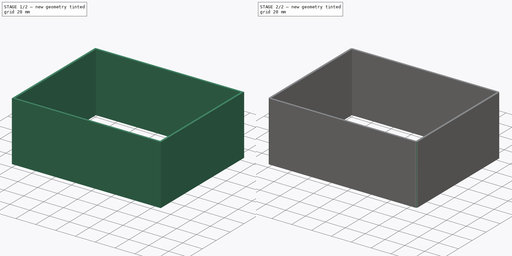
[diagram: build sequence overview — one tinted view per stage of 2, left to right]
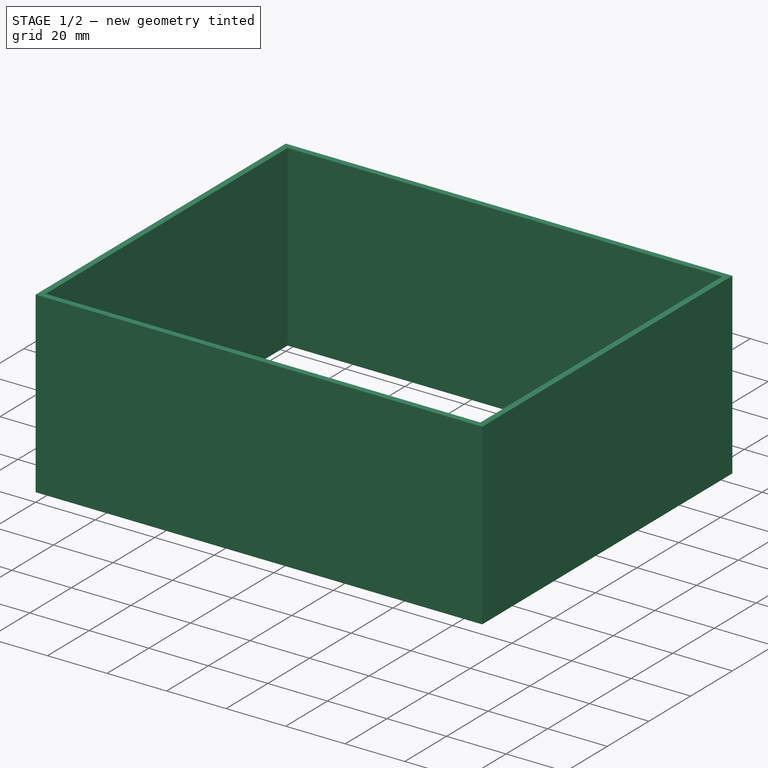
[diagram: stage 1 of 2 — iso view after this stage's code; geometry added in this stage tinted green]
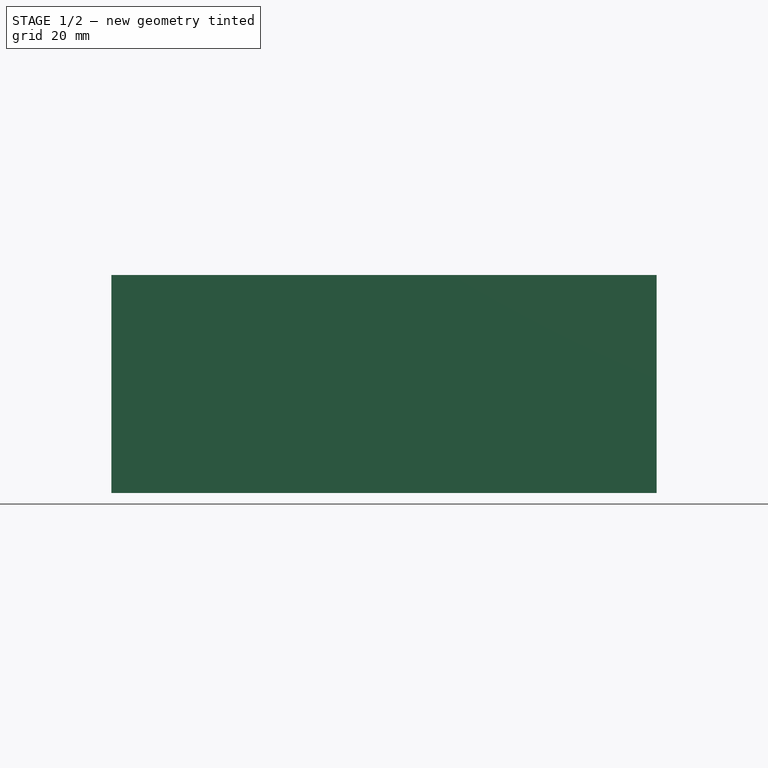
[diagram: stage 1 of 2 — front view after this stage's code; geometry added in this stage tinted green]
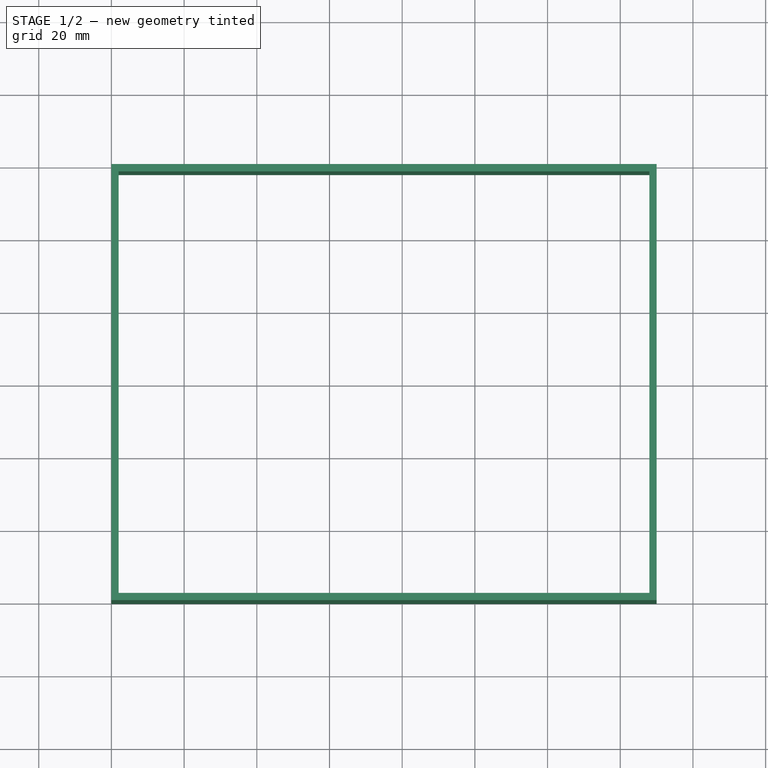
[diagram: stage 1 of 2 — top view after this stage's code; geometry added in this stage tinted green]
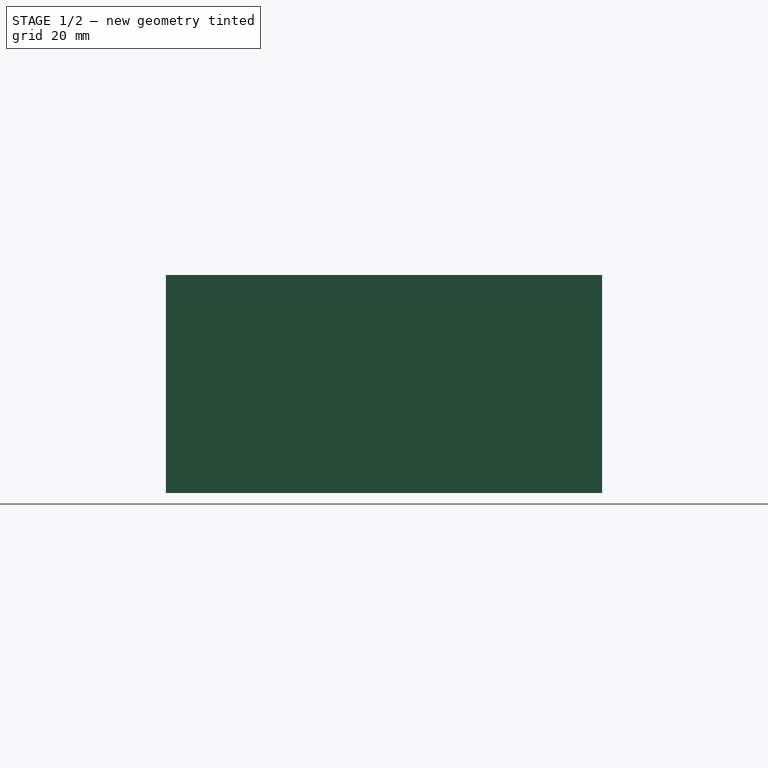
[diagram: stage 1 of 2 — right view after this stage's code; geometry added in this stage tinted green]
FCSTD DOCUMENT  (FreeCAD 1.0R38806 (Git))
Label: Walls
License: All rights reserved
LicenseURL: https://en.wikipedia.org/wiki/All_rights_reserved
objects: Sketcher::SketchObject×5, PartDesign::Plane×2, PartDesign::Pocket×2, PartDesign::Pad×1, PartDesign::Fillet×1, PartDesign::Body×1
note: 25 computed .brp shape members not serialized (recipe doc carries the construction recipe); baked Part::Feature solids carry a one-line shape summary decoded from their .brp

FEATURE [Sketcher::SketchObject] Sketch  label="Base"
  ArcFitTolerance = 0
  FullyConstrained = true
  MakeInternals = false
  MapMode = 5
  sketch-geometry (4):
    g0: LineSegment StartX=0 StartY=0 StartZ=0 EndX=150 EndY=0 EndZ=0
    g1: LineSegment StartX=150 StartY=0 StartZ=0 EndX=150 EndY=120 EndZ=0
    g2: LineSegment StartX=150 StartY=120 StartZ=0 EndX=0 EndY=120 EndZ=0
    g3: LineSegment StartX=0 StartY=120 StartZ=0 EndX=0 EndY=0 EndZ=0
  constraints (11):
    c: Coincident(g0,g1)
    c: Coincident(g1,g2)
    c: Coincident(g2,g3)
    c: Coincident(g3,g0)
    c: Horizontal(g0)
    c: Horizontal(g2)
    c: Vertical(g1)
    c: Vertical(g3)
    c: Coincident(g0,g-1)
    c: DistanceY(g3,g3) = 120  'height'
    c: DistanceX(g2,g2) = 150  'width'
FEATURE [Sketcher::SketchObject] Sketch001  label="Left"
  ArcFitTolerance = 0
  ExternalGeometry = -> [Sketch]
  FullyConstrained = true
  MakeInternals = false
  MapMode = 5
  Placement = pos=(0,0,0) rot=(0.57735,0.57735,0.57735;2.0944rad)
  sketch-geometry (4):
    g0: LineSegment StartX=0 StartY=0 StartZ=0 EndX=120 EndY=0 EndZ=0
    g1: LineSegment StartX=120 StartY=0 StartZ=0 EndX=120 EndY=60 EndZ=0
    g2: LineSegment StartX=120 StartY=60 StartZ=0 EndX=0 EndY=60 EndZ=0
    g3: LineSegment StartX=0 StartY=60 StartZ=0 EndX=0 EndY=0 EndZ=0
  constraints (10):
    c: Coincident(g0,g1)
    c: Coincident(g1,g2)
    c: Coincident(g2,g3)
    c: Coincident(g3,g0)
    c: Horizontal(g2)
    c: Vertical(g1)
    c: Vertical(g3)
    c: Coincident(g0,g-1)
    c: Coincident(g0,g-3)
    c: DistanceY(g3,g3) = 60  'gameboy_depth'
FEATURE [Sketcher::SketchObject] Sketch002  label="Front"
  ArcFitTolerance = 0
  ExternalGeometry = -> [Sketch001,Sketch]
  FullyConstrained = true
  MakeInternals = false
  MapMode = 5
  Placement = pos=(0,0,0) rot=(1,0,0;1.5708rad)
  sketch-geometry (4):
    g0: LineSegment StartX=0 StartY=60 StartZ=0 EndX=0 EndY=0 EndZ=0
    g1: LineSegment StartX=0 StartY=0 StartZ=0 EndX=150 EndY=0 EndZ=0
    g2: LineSegment StartX=150 StartY=0 StartZ=0 EndX=150 EndY=60 EndZ=0
    g3: LineSegment StartX=150 StartY=60 StartZ=0 EndX=0 EndY=60 EndZ=0
  constraints (10):
    c: Coincident(g0,g1)
    c: Coincident(g1,g2)
    c: Coincident(g2,g3)
    c: Coincident(g3,g0)
    c: Vertical(g0)
    c: Vertical(g2)
    c: Horizontal(g1)
    c: Horizontal(g3)
    c: Coincident(g0,g-3)
    c: Coincident(g1,g-4)
FEATURE [PartDesign::Plane] DatumPlane
  AttachmentOffset = pos=(0,0,-120) rot=(0,0,1;0rad)
  Length = 199.393
  MapMode = 5
  Placement = pos=(0,120,-2.4e-14) rot=(1,0,0;1.5708rad)
  ResizeMode = 0
  Width = 109.393
  expr: .AttachmentOffset.Base.z = -1 * <<Base>>.Constraints.height
FEATURE [PartDesign::Plane] DatumPlane001
  AttachmentOffset = pos=(0,0,150) rot=(0,0,1;0rad)
  Length = 167.204
  MapMode = 5
  Placement = pos=(125,0,0) rot=(0.57735,0.57735,0.57735;2.0944rad)
  ResizeMode = 0
  Width = 107.204
  expr: .AttachmentOffset.Base.z = <<Base>>.Constraints.width
FEATURE [Sketcher::SketchObject] Sketch003  label="Cutout"
  ArcFitTolerance = 0
  ExternalGeometry = -> [Sketch]
  FullyConstrained = true
  MakeInternals = false
  MapMode = 5
  expr: Constraints[10] = .Constraints.border_x
  expr: Constraints[11] = .Constraints.border_y
  sketch-geometry (4):
    g0: LineSegment StartX=2 StartY=118 StartZ=0 EndX=2 EndY=2 EndZ=0
    g1: LineSegment StartX=2 StartY=2 StartZ=0 EndX=148 EndY=2 EndZ=0
    g2: LineSegment StartX=148 StartY=2 StartZ=0 EndX=148 EndY=118 EndZ=0
    g3: LineSegment StartX=148 StartY=118 StartZ=0 EndX=2 EndY=118 EndZ=0
  constraints (12):
    c: Coincident(g0,g1)
    c: Coincident(g1,g2)
    c: Coincident(g2,g3)
    c: Coincident(g3,g0)
    c: Vertical(g0)
    c: Vertical(g2)
    c: Horizontal(g1)
    c: Horizontal(g3)
    c: DistanceX(g-1,g0) = 2  'border_x'
    c: Distance(g0,g-1) = 2  'border_y'
    c: DistanceX(g2,g-3) = 2
    c: DistanceY(g2,g-3) = 2
FEATURE [PartDesign::Pad] Pad
  Direction = (0,0,1)
  Length = 60
  Length2 = 10
  Profile = -> Sketch
  ReferenceAxis = -> Sketch [N_Axis]
  Refine = true
  Suppressed = false
  Type = 0
  expr: Length = <<Left>>.Constraints.gameboy_depth
FEATURE [PartDesign::Pocket] Pocket
  BaseFeature = -> Pad
  Direction = (0,0,-1)
  Length = 60
  Length2 = 5
  Profile = -> Sketch003
  ReferenceAxis = -> Sketch003 [N_Axis]
  Refine = true
  Reversed = true
  Suppressed = false
  Type = 0
  expr: Length = <<Left>>.Constraints.gameboy_depth
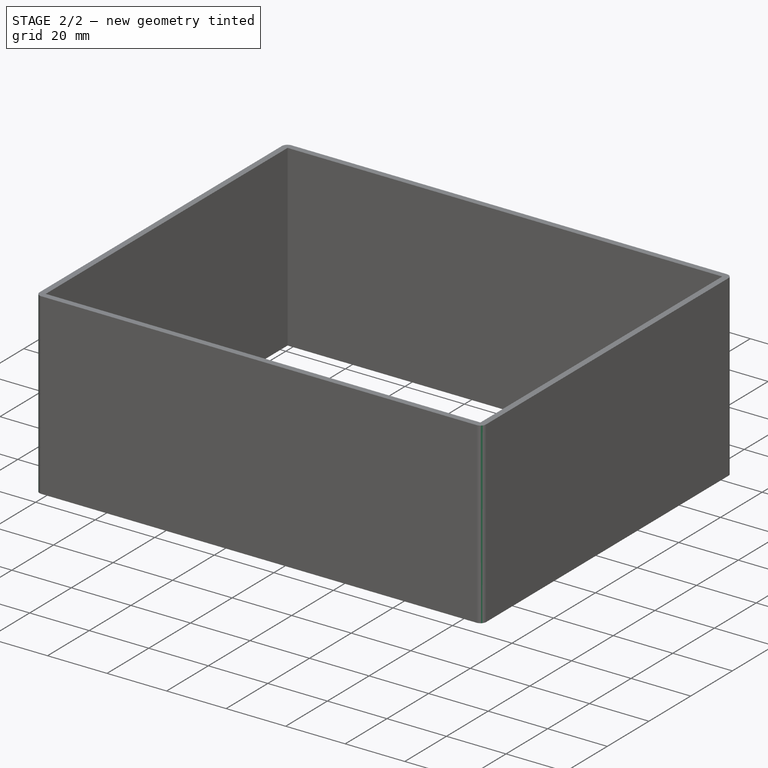
[diagram: stage 2 of 2 — iso view after this stage's code; geometry added in this stage tinted green]
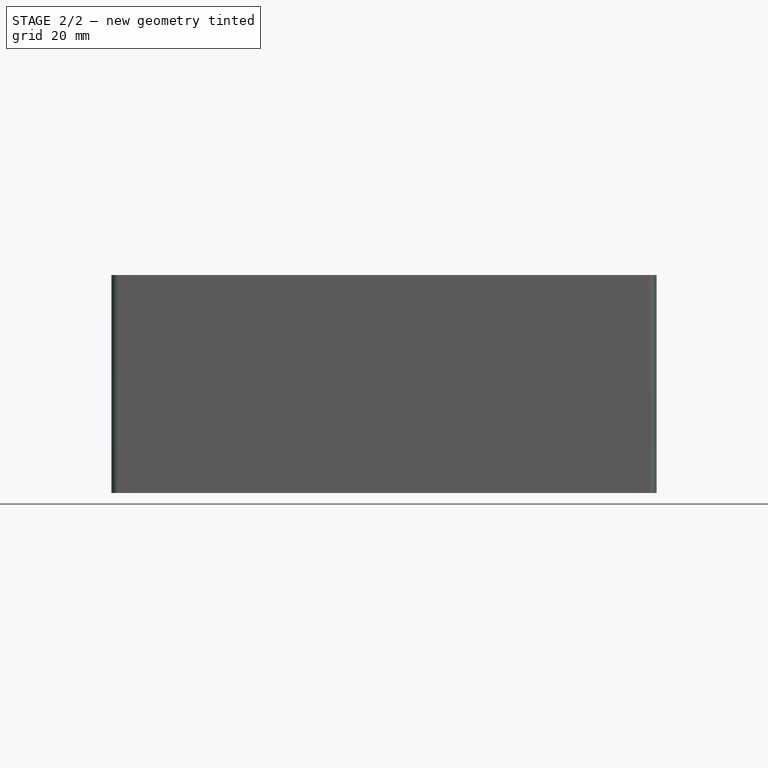
[diagram: stage 2 of 2 — front view after this stage's code; geometry added in this stage tinted green]
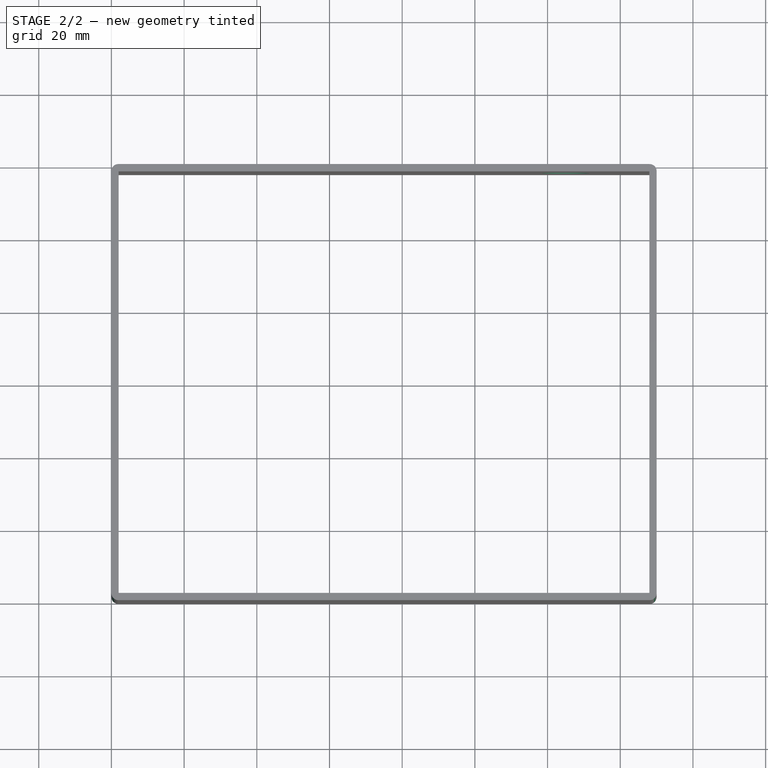
[diagram: stage 2 of 2 — top view after this stage's code; geometry added in this stage tinted green]
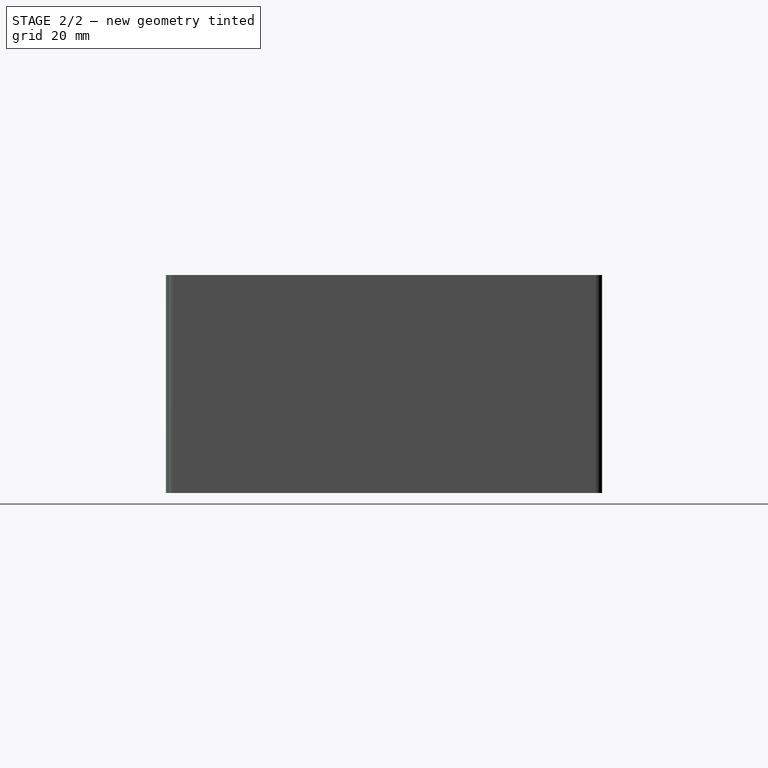
[diagram: stage 2 of 2 — right view after this stage's code; geometry added in this stage tinted green]
FEATURE [Sketcher::SketchObject] Sketch004  label="BackSwitchHole"
  ArcFitTolerance = 0
  FullyConstrained = true
  MakeInternals = false
  MapMode = 5
  Placement = pos=(0,120,-2.4e-14) rot=(1,0,0;1.5708rad)
  sketch-geometry (1):
    g0: Circle CenterX=125 CenterY=30 CenterZ=0 NormalX=0 NormalY=0 NormalZ=1 AngleXU=0 Radius=6.5
  constraints (3):
    c: Diameter(g0) = 13  'power_switch_hole_diameter'
    c: DistanceY(g-1,g0) = 30  'power_switch_y'
    c: DistanceX(g-1,g0) = 125  'power_switch_x'
FEATURE [PartDesign::Pocket] Pocket001
  BaseFeature = -> Pocket
  Direction = (0,1,0)
  Length = 2
  Length2 = 5
  Profile = -> Sketch004
  ReferenceAxis = -> Sketch004 [N_Axis]
  Refine = true
  Reversed = true
  Suppressed = false
  Type = 0
  expr: Length = <<Cutout>>.Constraints.border_y
FEATURE [PartDesign::Fillet] Fillet
  Base = -> Pocket001 [Edge2,Edge1,Edge5,Edge8]
  BaseFeature = -> Pocket001
  Radius = 1.9
  Refine = true
  SupportTransform = false
  Suppressed = false
  UseAllEdges = false
FEATURE [PartDesign::Body] Body
  AllowCompound = false
  Group = -> [Sketch,Sketch001,Sketch002,DatumPlane,DatumPlane001,Sketch003,Pad,Pocket,Sketch004,Pocket001,Fillet]
  Origin = -> Origin
  Tip = -> Fillet
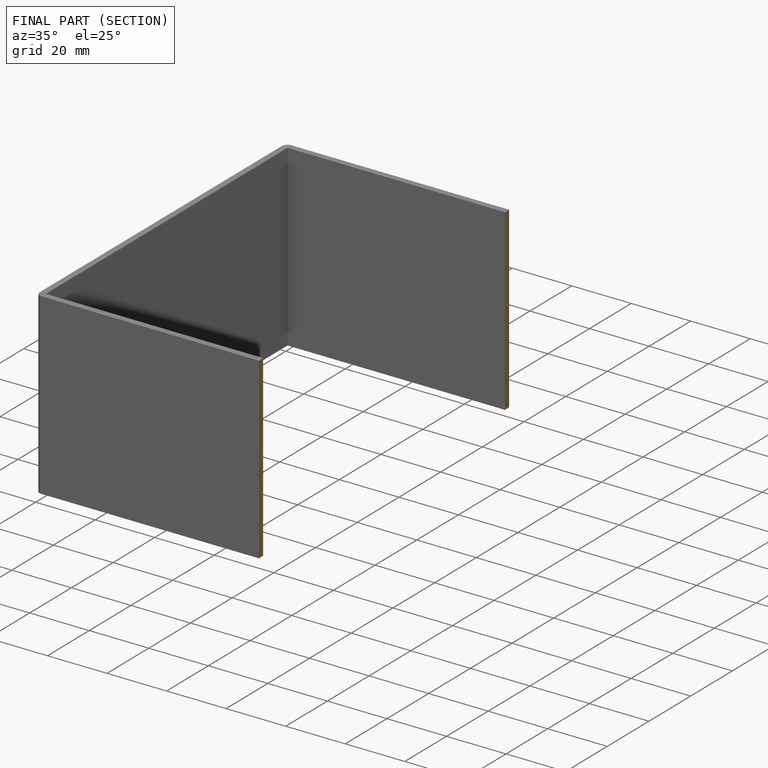
[diagram: finished part — half-section view (interior)]
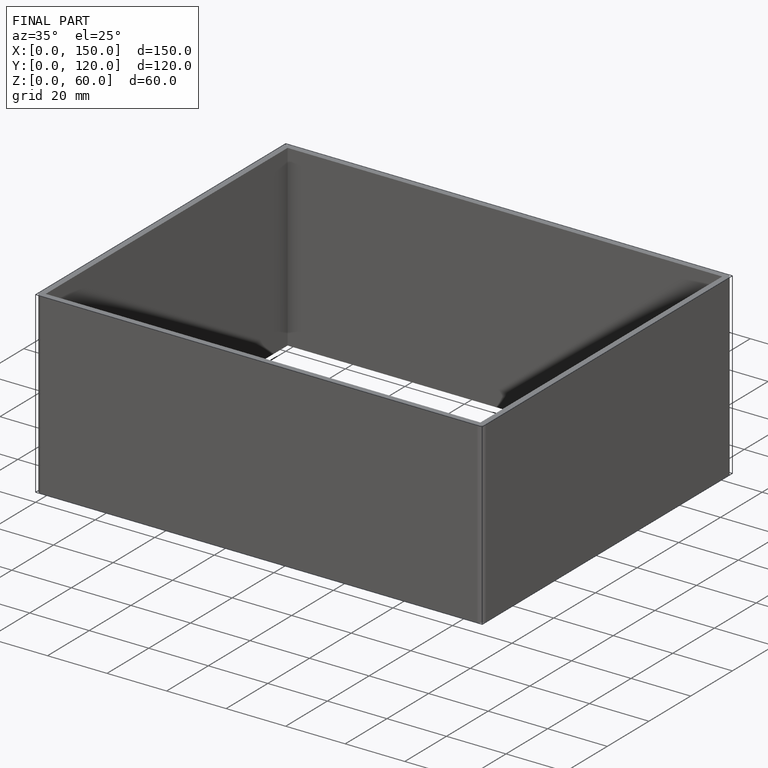
[diagram: finished part — iso view with bounding-box wireframe]
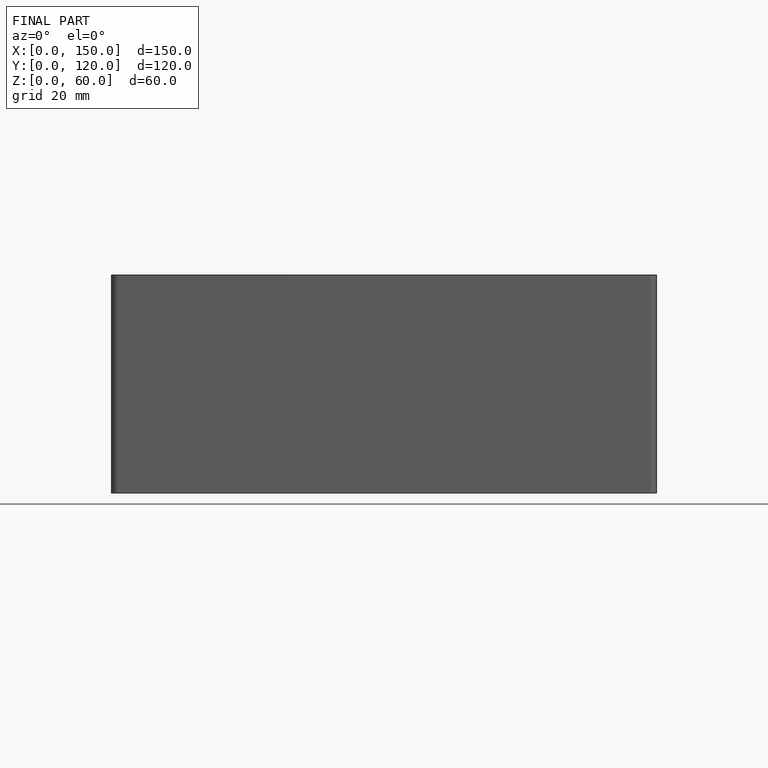
[diagram: finished part — front view with bounding-box wireframe]
